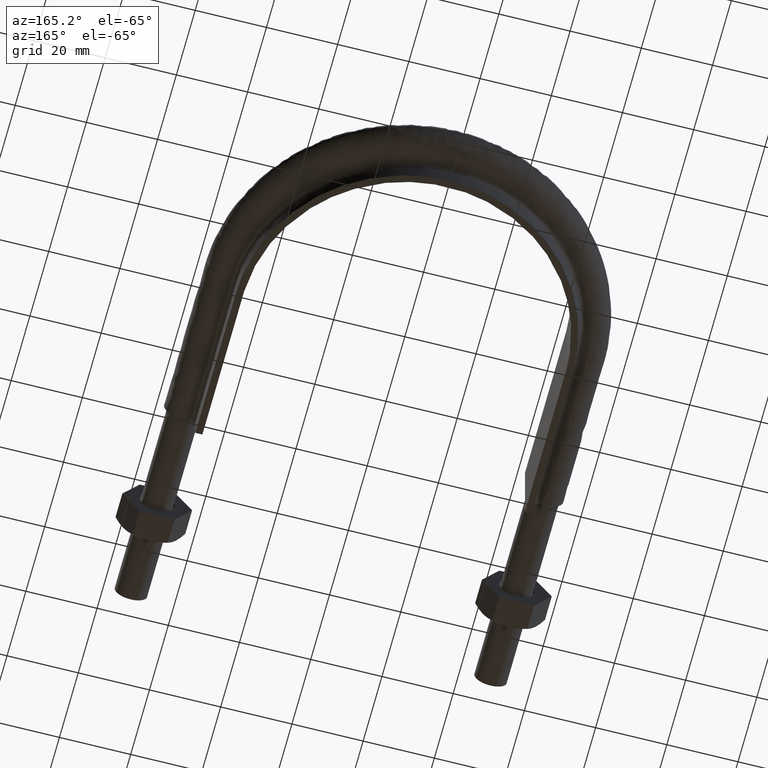
[diagram: clean part render]
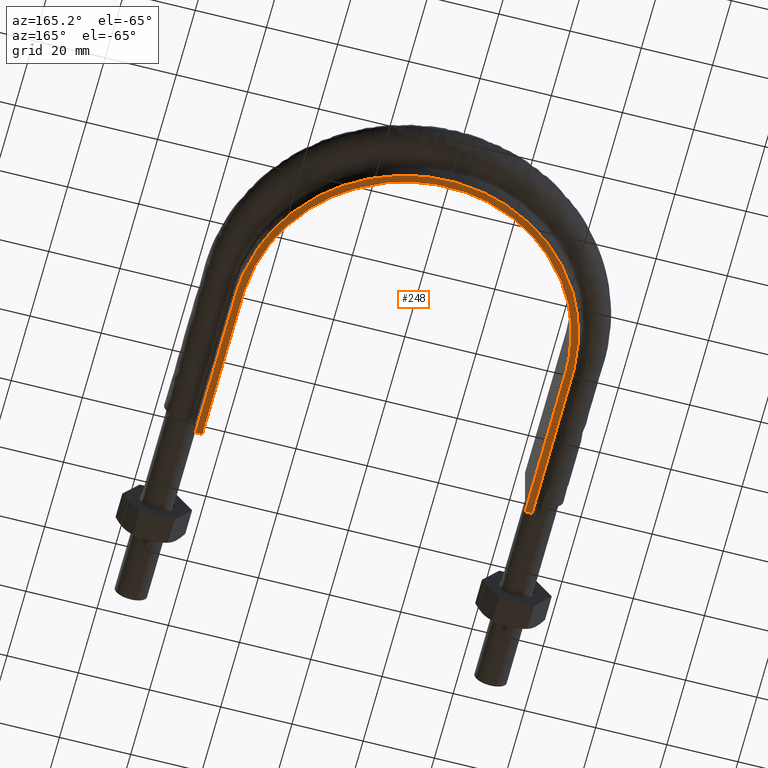
[diagram: same view with one face highlighted and labeled with its STEP entity id]
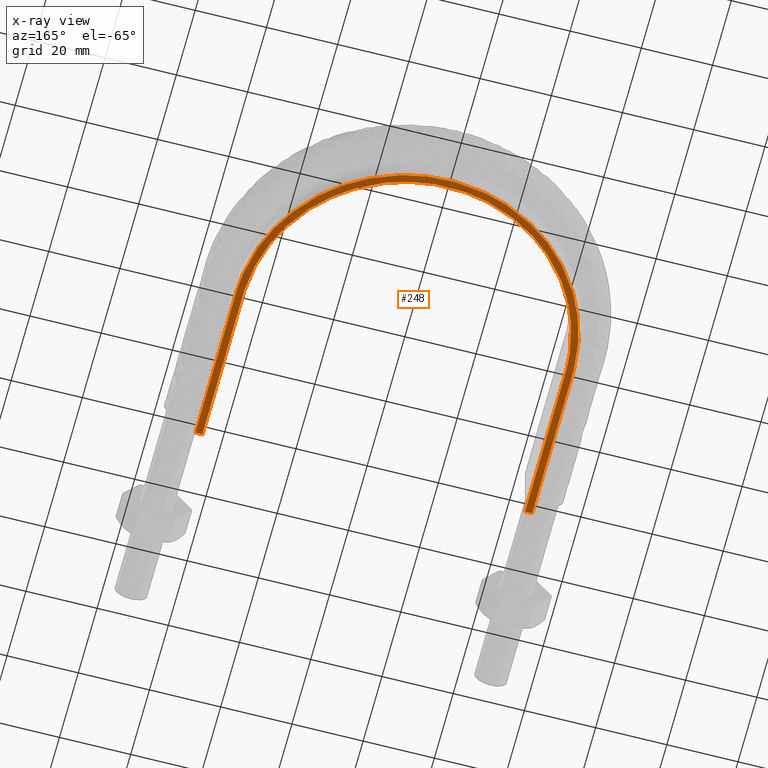
[diagram: x-ray of the same camera — body ghosted, the highlighted face saturated]
A machine part, auxiliary view. The second image highlights one B-rep face of the part: STEP entity #248.
The next image is the same camera in x-ray: the body ghosted, the highlighted face saturated — about 0% of this face is hidden behind the body in this view.
In plain terms, the highlighted planar face has unit normal (0, 0, 1).
Its self-contained STEP definition (entity closure, byte-faithful):
#248 = ADVANCED_FACE( '', ( #364 ), #365, .F. );
#364 = FACE_OUTER_BOUND( '', #1350, .T. );
#365 = PLANE( '', #1351 );
#1350 = EDGE_LOOP( '', ( #1638, #1639, #1640, #1641 ) );
#1351 = AXIS2_PLACEMENT_3D( '', #1642, #1643, #1644 );
#1638 = ORIENTED_EDGE( '', *, *, #2038, .F. );
#1639 = ORIENTED_EDGE( '', *, *, #2028, .F. );
#1640 = ORIENTED_EDGE( '', *, *, #2037, .F. );
#1641 = ORIENTED_EDGE( '', *, *, #2034, .F. );
#1642 = CARTESIAN_POINT( '', ( 60.0000000000000, 166.300000000000, -12.5000000000000 ) );
#1643 = DIRECTION( '', ( 0.000000000000000, 0.000000000000000, 1.00000000000000 ) );
#1644 = DIRECTION( '', ( 1.00000000000000, 0.000000000000000, 0.000000000000000 ) );
#2028 = EDGE_CURVE( '', #2202, #2198, #2204, .T. );
#2034 = EDGE_CURVE( '', #2212, #2214, #2215, .T. );
#2037 = EDGE_CURVE( '', #2214, #2202, #2219, .F. );
#2038 = EDGE_CURVE( '', #2198, #2212, #2220, .F. );
#2198 = VERTEX_POINT( '', #2490 );
#2202 = VERTEX_POINT( '', #2496 );
#2204 = LINE( '', #2528, #2529 );
#2212 = VERTEX_POINT( '', #2645 );
#2214 = VERTEX_POINT( '', #2648 );
#2215 = LINE( '', #2649, #2650 );
#2219 = B_SPLINE_CURVE_WITH_KNOTS( '', 3, ( #2693, #2694, #2695, #2696, #2697, #2698, #2699, #2700, #2701, #2702, #2703, #2704, #2705, #2706, #2707, #2708 ), .UNSPECIFIED., .F., .F., ( 4, 3, 1, 1, 1, 1, 1, 1, 3, 4 ), ( 0.0686695278969953, 1.00000000000000, 2.00000000000000, 3.00000000000000, 4.00000000000000, 5.00000000000000, 6.00000000000000, 7.00000000000000, 8.00000000000000, 8.93133047210300 ), .UNSPECIFIED. );
#2220 = B_SPLINE_CURVE_WITH_KNOTS( '', 3, ( #2709, #2710, #2711, #2712, #2713, #2714, #2715, #2716, #2717, #2718, #2719, #2720, #2721, #2722, #2723, #2724 ), .UNSPECIFIED., .F., .F., ( 4, 3, 1, 1, 1, 1, 1, 1, 3, 4 ), ( -8.93133047210300, -8.00000000000000, -7.00000000000000, -6.00000000000000, -5.00000000000000, -4.00000000000000, -3.00000000000000, -2.00000000000000, -1.00000000000000, -0.0686695278969956 ), .UNSPECIFIED. );
#2490 = CARTESIAN_POINT( '', ( -45.3000000000000, 56.3000000000000, -12.5000000000000 ) );
#2496 = CARTESIAN_POINT( '', ( -47.3000000000000, 56.3000000000000, -12.5000000000000 ) );
#2528 = CARTESIAN_POINT( '', ( -60.0000000000000, 56.3000000000000, -12.5000000000000 ) );
#2529 = VECTOR( '', #3115, 1000.00000000000 );
#2645 = CARTESIAN_POINT( '', ( 45.3000000000000, 56.3000000000000, -12.5000000000000 ) );
#2648 = CARTESIAN_POINT( '', ( 47.3000000000000, 56.3000000000000, -12.5000000000000 ) );
#2649 = CARTESIAN_POINT( '', ( -60.0000000000000, 56.3000000000000, -12.5000000000000 ) );
#2650 = VECTOR( '', #3118, 1000.00000000000 );
#2693 = CARTESIAN_POINT( '', ( -47.3000000000000, 56.3000000000000, -12.5000000000000 ) );
#2694 = CARTESIAN_POINT( '', ( -47.3000000000000, 70.7666666666667, -12.5000000000000 ) );
#2695 = CARTESIAN_POINT( '', ( -47.3000000000000, 85.2333333333333, -12.5000000000000 ) );
#2696 = CARTESIAN_POINT( '', ( -47.3000000000000, 99.7000000000000, -12.5000000000000 ) );
#2697 = CARTESIAN_POINT( '', ( -47.3000000000000, 106.766118839385, -12.5000000000000 ) );
#2698 = CARTESIAN_POINT( '', ( -44.0706150865365, 120.927141121989, -12.5000000000000 ) );
#2699 = CARTESIAN_POINT( '', ( -30.4978119078285, 137.942032975526, -12.5000000000000 ) );
#2700 = CARTESIAN_POINT( '', ( -10.8845430496578, 147.388501700335, -12.5000000000000 ) );
#2701 = CARTESIAN_POINT( '', ( 10.8845430496579, 147.388501700335, -12.5000000000000 ) );
#2702 = CARTESIAN_POINT( '', ( 30.4978119078286, 137.942032975526, -12.5000000000000 ) );
#2703 = CARTESIAN_POINT( '', ( 44.0706150865366, 120.927141121989, -12.5000000000000 ) );
#2704 = CARTESIAN_POINT( '', ( 47.3000000000000, 106.766118839385, -12.5000000000000 ) );
#2705 = CARTESIAN_POINT( '', ( 47.3000000000000, 99.7000000000000, -12.5000000000000 ) );
#2706 = CARTESIAN_POINT( '', ( 47.3000000000000, 85.2333333333333, -12.5000000000000 ) );
#2707 = CARTESIAN_POINT( '', ( 47.3000000000000, 70.7666666666666, -12.5000000000000 ) );
#2708 = CARTESIAN_POINT( '', ( 47.3000000000000, 56.3000000000000, -12.5000000000000 ) );
#2709 = CARTESIAN_POINT( '', ( 45.3000000000000, 56.3000000000000, -12.5000000000000 ) );
#2710 = CARTESIAN_POINT( '', ( 45.3000000000000, 70.7666666666667, -12.5000000000000 ) );
#2711 = CARTESIAN_POINT( '', ( 45.3000000000000, 85.2333333333333, -12.5000000000000 ) );
#2712 = CARTESIAN_POINT( '', ( 45.3000000000000, 99.7000000000000, -12.5000000000000 ) );
#2713 = CARTESIAN_POINT( '', ( 45.3000000000000, 106.461794206864, -12.5000000000000 ) );
#2714 = CARTESIAN_POINT( '', ( 42.2071641315033, 120.032157601825, -12.5000000000000 ) );
#2715 = CARTESIAN_POINT( '', ( 29.2082638356160, 136.324357375469, -12.5000000000000 ) );
#2716 = CARTESIAN_POINT( '', ( 10.4243086712368, 145.372209831110, -12.5000000000000 ) );
#2717 = CARTESIAN_POINT( '', ( -10.4243086712368, 145.372209831110, -12.5000000000000 ) );
#2718 = CARTESIAN_POINT( '', ( -29.2082638356159, 136.324357375469, -12.5000000000000 ) );
#2719 = CARTESIAN_POINT( '', ( -42.2071641315033, 120.032157601825, -12.5000000000000 ) );
#2720 = CARTESIAN_POINT( '', ( -45.3000000000000, 106.461794206864, -12.5000000000000 ) );
#2721 = CARTESIAN_POINT( '', ( -45.3000000000000, 99.7000000000000, -12.5000000000000 ) );
#2722 = CARTESIAN_POINT( '', ( -45.3000000000000, 85.2333333333333, -12.5000000000000 ) );
#2723 = CARTESIAN_POINT( '', ( -45.3000000000000, 70.7666666666667, -12.5000000000000 ) );
#2724 = CARTESIAN_POINT( '', ( -45.3000000000000, 56.3000000000000, -12.5000000000000 ) );
#3115 = DIRECTION( '', ( 1.00000000000000, -1.83649404852125E-048, 0.000000000000000 ) );
#3118 = DIRECTION( '', ( 1.00000000000000, -1.83649404852125E-048, 0.000000000000000 ) );